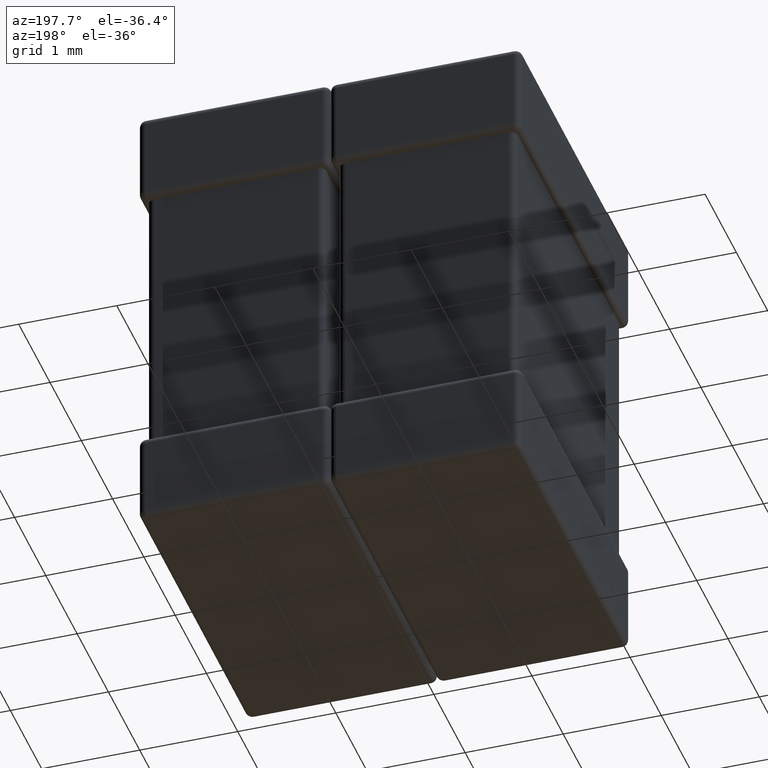
[diagram: clean part render]
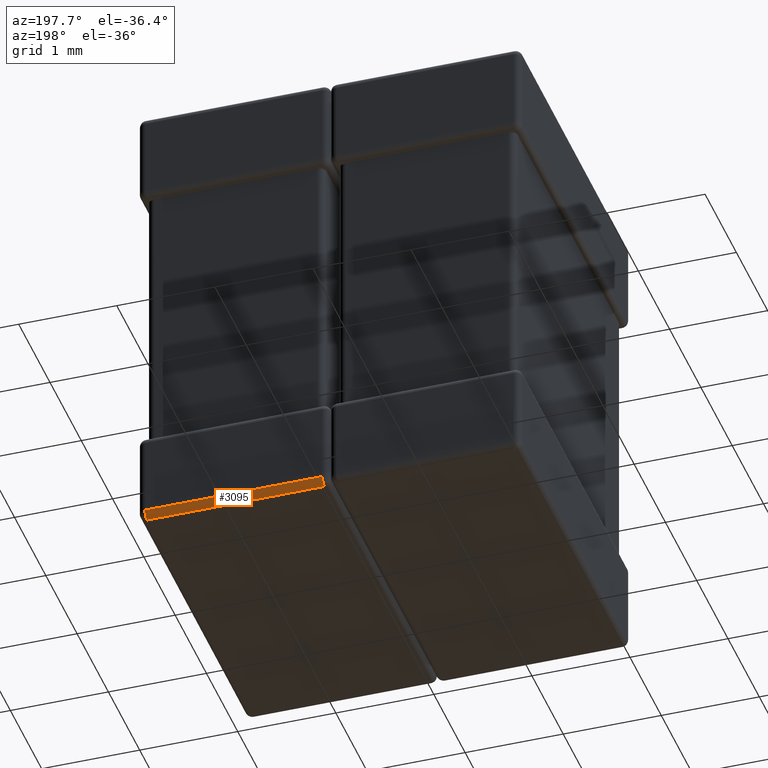
[diagram: same view with one face highlighted and labeled with its STEP entity id]
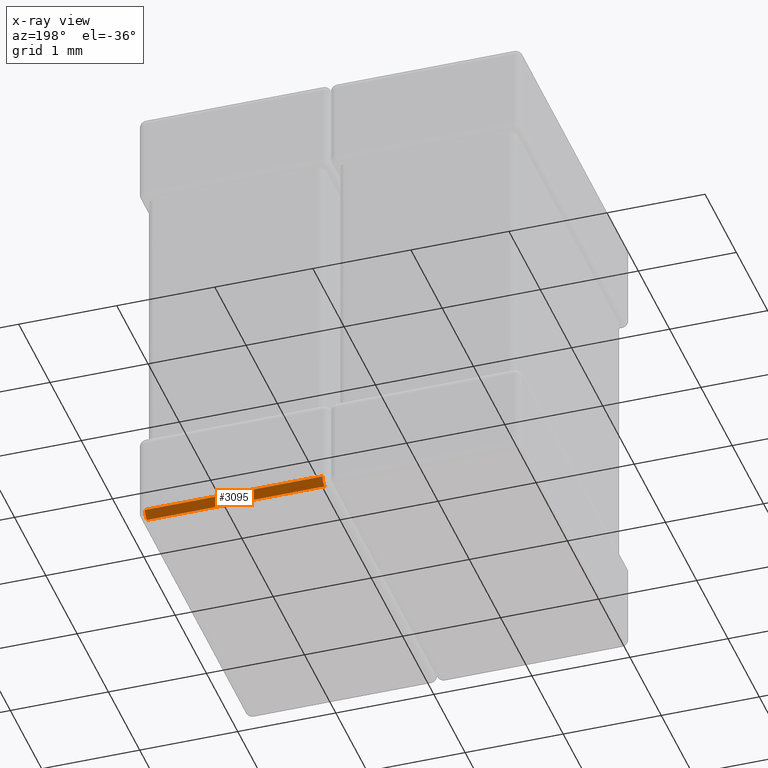
[diagram: x-ray of the same camera — body ghosted, the highlighted face saturated]
A machine part, auxiliary view. The second image highlights one B-rep face of the part: STEP entity #3095.
The next image is the same camera in x-ray: the body ghosted, the highlighted face saturated — about 0% of this face is hidden behind the body in this view.
In plain terms, the highlighted cylindrical surface (edge-blend (fillet) strip) has radius 0.07 mm, axis along (-1, 0, 0).
Its self-contained STEP definition (entity closure, byte-faithful):
#31 = EDGE_CURVE ( 'NONE', #7243, #5217, #4922, .T. ) ;
#33 = EDGE_CURVE ( 'NONE', #5217, #4271, #6804, .T. ) ;
#159 = DIRECTION ( 'NONE',  ( 1.000000000000000000, -0.000000000000000000, -0.000000000000000000 ) ) ;
#320 = VERTEX_POINT ( 'NONE', #3466 ) ;
#751 = CIRCLE ( 'NONE', #3885, 0.06999999999999975686 ) ;
#763 = CARTESIAN_POINT ( 'NONE',  ( 2.019999999999999130, 3.430000000000000160, -4.729999999999999538 ) ) ;
#835 = DIRECTION ( 'NONE',  ( 0.000000000000000000, 0.000000000000000000, -1.000000000000000000 ) ) ;
#1015 = EDGE_LOOP ( 'NONE', ( #1294, #4142, #4199, #8079 ) ) ;
#1021 = CARTESIAN_POINT ( 'NONE',  ( 1.949999999999999289, 3.430000000000000160, -4.729999999999999538 ) ) ;
#1294 = ORIENTED_EDGE ( 'NONE', *, *, #31, .F. ) ;
#2168 = DIRECTION ( 'NONE',  ( -1.000000000000000000, 0.000000000000000000, 0.000000000000000000 ) ) ;
#2201 = CARTESIAN_POINT ( 'NONE',  ( 1.949999999999999289, 3.500000000000000444, -4.729999999999999538 ) ) ;
#2236 = DIRECTION ( 'NONE',  ( 1.000000000000000000, -0.000000000000000000, 0.000000000000000000 ) ) ;
#2378 = EDGE_CURVE ( 'NONE', #320, #7243, #7688, .T. ) ;
#3095 = ADVANCED_FACE ( 'NONE', ( #8671 ), #8491, .T. ) ;
#3466 = CARTESIAN_POINT ( 'NONE',  ( 2.019999999999999130, 3.430000000000000160, -4.799999999999999822 ) ) ;
#3847 = VECTOR ( 'NONE', #159, 1000.000000000000000 ) ;
#3885 = AXIS2_PLACEMENT_3D ( 'NONE', #763, #2168, #4923 ) ;
#4142 = ORIENTED_EDGE ( 'NONE', *, *, #2378, .F. ) ;
#4198 = CARTESIAN_POINT ( 'NONE',  ( 3.829999999999999183, 3.430000000000000160, -4.729999999999999538 ) ) ;
#4199 = ORIENTED_EDGE ( 'NONE', *, *, #5473, .F. ) ;
#4248 = CARTESIAN_POINT ( 'NONE',  ( 3.829999999999999183, 3.500000000000000444, -4.729999999999999538 ) ) ;
#4271 = VERTEX_POINT ( 'NONE', #6425 ) ;
#4805 = CARTESIAN_POINT ( 'NONE',  ( 3.829999999999999183, 3.430000000000000160, -4.799999999999999822 ) ) ;
#4922 = CIRCLE ( 'NONE', #5643, 0.06999999999999975686 ) ;
#4923 = DIRECTION ( 'NONE',  ( 0.000000000000000000, 0.000000000000000000, 1.000000000000000000 ) ) ;
#4954 = DIRECTION ( 'NONE',  ( -1.000000000000000000, 0.000000000000000000, 0.000000000000000000 ) ) ;
#5217 = VERTEX_POINT ( 'NONE', #4248 ) ;
#5266 = DIRECTION ( 'NONE',  ( 0.000000000000000000, 0.000000000000000000, 1.000000000000000000 ) ) ;
#5470 = CARTESIAN_POINT ( 'NONE',  ( 1.949999999999999956, 3.430000000000000160, -4.799999999999999822 ) ) ;
#5473 = EDGE_CURVE ( 'NONE', #4271, #320, #751, .T. ) ;
#5643 = AXIS2_PLACEMENT_3D ( 'NONE', #4198, #2236, #835 ) ;
#6052 = VECTOR ( 'NONE', #4954, 1000.000000000000000 ) ;
#6425 = CARTESIAN_POINT ( 'NONE',  ( 2.019999999999999130, 3.500000000000000444, -4.729999999999999538 ) ) ;
#6518 = AXIS2_PLACEMENT_3D ( 'NONE', #1021, #7313, #5266 ) ;
#6804 = LINE ( 'NONE', #2201, #6052 ) ;
#7243 = VERTEX_POINT ( 'NONE', #4805 ) ;
#7313 = DIRECTION ( 'NONE',  ( -1.000000000000000000, 0.000000000000000000, 0.000000000000000000 ) ) ;
#7688 = LINE ( 'NONE', #5470, #3847 ) ;
#8079 = ORIENTED_EDGE ( 'NONE', *, *, #33, .F. ) ;
#8491 = CYLINDRICAL_SURFACE ( 'NONE', #6518, 0.06999999999999975686 ) ;
#8671 = FACE_OUTER_BOUND ( 'NONE', #1015, .T. ) ;